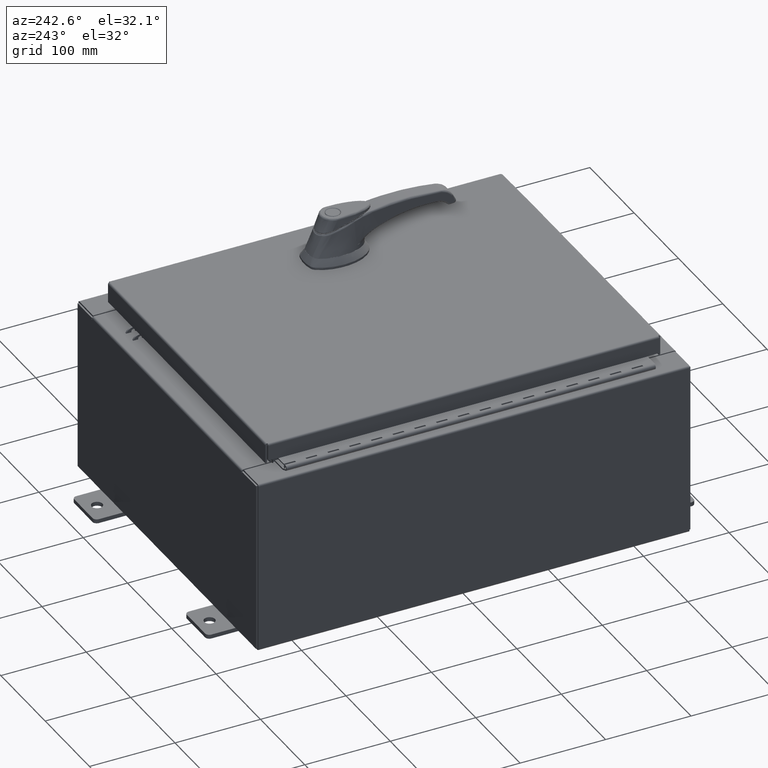
[diagram: clean part render]
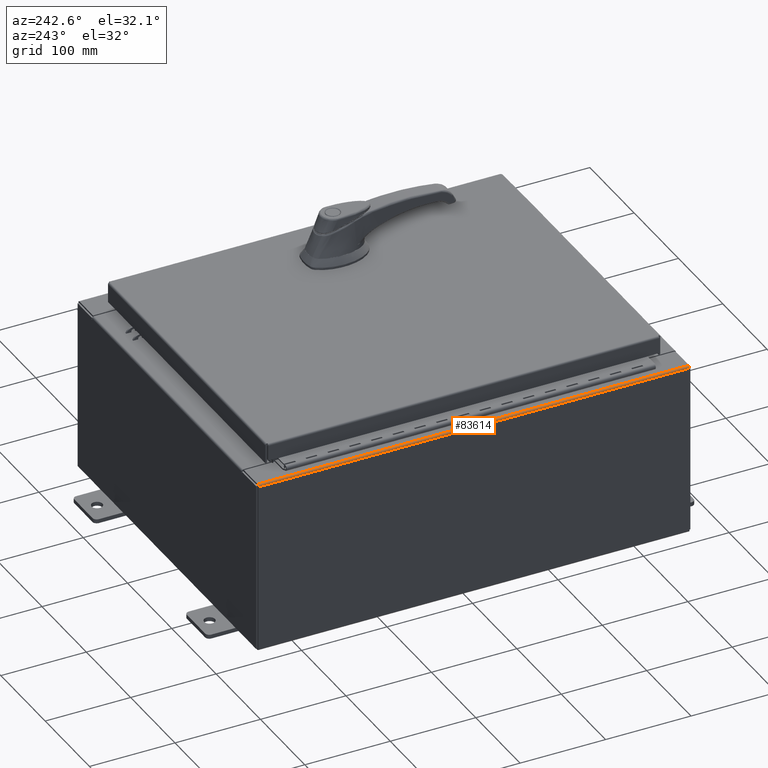
[diagram: same view with one face highlighted and labeled with its STEP entity id]
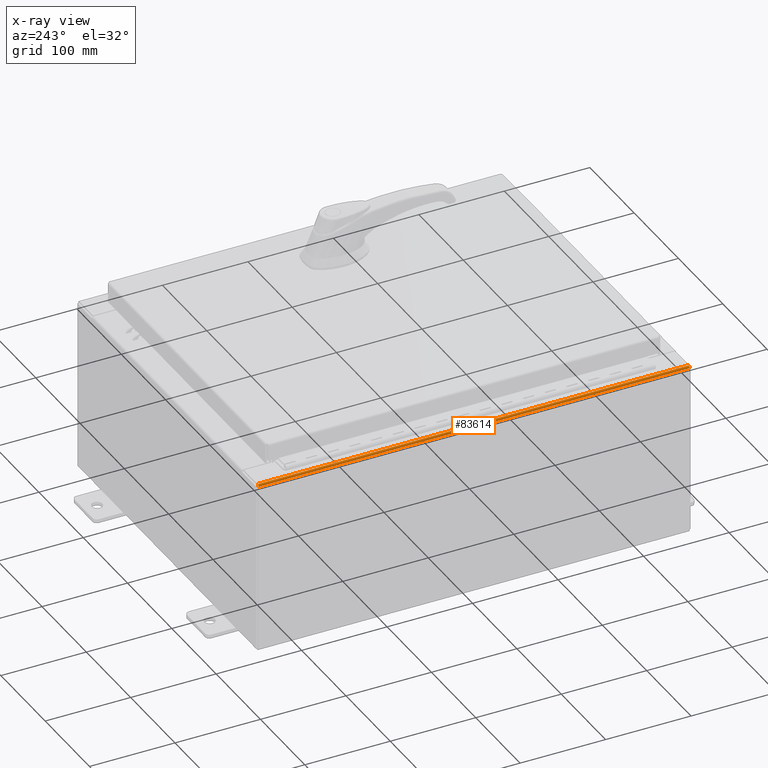
[diagram: x-ray of the same camera — body ghosted, the highlighted face saturated]
A machine part, auxiliary view. The second image highlights one B-rep face of the part: STEP entity #83614.
The next image is the same camera in x-ray: the body ghosted, the highlighted face saturated — about 0% of this face is hidden behind the body in this view.
In plain terms, the highlighted cylindrical surface (edge-blend (fillet) strip) has radius 2.2276 mm, axis along (-0, -1, -0).
Its self-contained STEP definition (entity closure, byte-faithful):
#234 = DIRECTION ( 'NONE',  ( 0.0000000000000000000, 1.000000000000000000, 0.0000000000000000000 ) ) ;
#4836 = AXIS2_PLACEMENT_3D ( 'NONE', #50753, #234, #59242 ) ;
#5348 = EDGE_LOOP ( 'NONE', ( #46177, #87533, #42067, #34884 ) ) ;
#5815 = DIRECTION ( 'NONE',  ( -0.0000000000000000000, -1.000000000000000000, -0.0000000000000000000 ) ) ;
#6346 = VECTOR ( 'NONE', #43952, 39.37007874015748100 ) ;
#9285 = EDGE_CURVE ( 'NONE', #13798, #54508, #93793, .T. ) ;
#9372 = AXIS2_PLACEMENT_3D ( 'NONE', #47892, #5815, #98005 ) ;
#9382 = EDGE_CURVE ( 'NONE', #13798, #28800, #66122, .T. ) ;
#13798 = VERTEX_POINT ( 'NONE', #74891 ) ;
#21975 = CIRCLE ( 'NONE', #4836, 0.08770000000000026400 ) ;
#22718 = AXIS2_PLACEMENT_3D ( 'NONE', #39810, #98776, #48291 ) ;
#28800 = VERTEX_POINT ( 'NONE', #65076 ) ;
#28829 = LINE ( 'NONE', #77431, #6346 ) ;
#34884 = ORIENTED_EDGE ( 'NONE', *, *, #77088, .F. ) ;
#39810 = CARTESIAN_POINT ( 'NONE',  ( -7.912300000000025000, -9.925300000000000000, 7.837599999999999200 ) ) ;
#40676 = FACE_OUTER_BOUND ( 'NONE', #5348, .T. ) ;
#42067 = ORIENTED_EDGE ( 'NONE', *, *, #9382, .T. ) ;
#43265 = EDGE_CURVE ( 'NONE', #54508, #51347, #28829, .T. ) ;
#43952 = DIRECTION ( 'NONE',  ( 0.0000000000000000000, 1.000000000000000000, 0.0000000000000000000 ) ) ;
#46177 = ORIENTED_EDGE ( 'NONE', *, *, #43265, .F. ) ;
#47892 = CARTESIAN_POINT ( 'NONE',  ( -7.912300000000025000, -9.925300000000000000, 7.837599999999999200 ) ) ;
#48291 = DIRECTION ( 'NONE',  ( 0.0000000000000000000, 0.0000000000000000000, -1.000000000000000000 ) ) ;
#50753 = CARTESIAN_POINT ( 'NONE',  ( -7.912300000000025000, 9.925299999999996500, 7.837599999999999200 ) ) ;
#51347 = VERTEX_POINT ( 'NONE', #61274 ) ;
#54508 = VERTEX_POINT ( 'NONE', #66193 ) ;
#59242 = DIRECTION ( 'NONE',  ( 0.0000000000000000000, 0.0000000000000000000, -1.000000000000000000 ) ) ;
#61274 = CARTESIAN_POINT ( 'NONE',  ( -8.000000000000024900, 9.925299999999996500, 7.837599999999999200 ) ) ;
#65076 = CARTESIAN_POINT ( 'NONE',  ( -7.912300000000025000, 9.925299999999996500, 7.925300000000000000 ) ) ;
#66122 = LINE ( 'NONE', #82546, #88509 ) ;
#66193 = CARTESIAN_POINT ( 'NONE',  ( -8.000000000000024900, -9.925300000000000000, 7.837599999999999200 ) ) ;
#74891 = CARTESIAN_POINT ( 'NONE',  ( -7.912300000000025000, -9.925299999999998200, 7.925300000000000000 ) ) ;
#77088 = EDGE_CURVE ( 'NONE', #51347, #28800, #21975, .T. ) ;
#77431 = CARTESIAN_POINT ( 'NONE',  ( -8.000000000000024900, -9.925300000000000000, 7.837599999999999200 ) ) ;
#82546 = CARTESIAN_POINT ( 'NONE',  ( -7.912300000000025000, 9.925299999999998200, 7.925300000000000000 ) ) ;
#83614 = ADVANCED_FACE ( 'NONE', ( #40676 ), #102676, .T. ) ;
#87533 = ORIENTED_EDGE ( 'NONE', *, *, #9285, .F. ) ;
#88509 = VECTOR ( 'NONE', #91045, 39.37007874015748100 ) ;
#91045 = DIRECTION ( 'NONE',  ( -0.0000000000000000000, 1.000000000000000000, -0.0000000000000000000 ) ) ;
#93793 = CIRCLE ( 'NONE', #22718, 0.08770000000000026400 ) ;
#98005 = DIRECTION ( 'NONE',  ( -1.245996804407870000E-014, 0.0000000000000000000, 1.000000000000000000 ) ) ;
#98776 = DIRECTION ( 'NONE',  ( -0.0000000000000000000, -1.000000000000000000, -0.0000000000000000000 ) ) ;
#102676 = CYLINDRICAL_SURFACE ( 'NONE', #9372, 0.08770000000000026400 ) ;